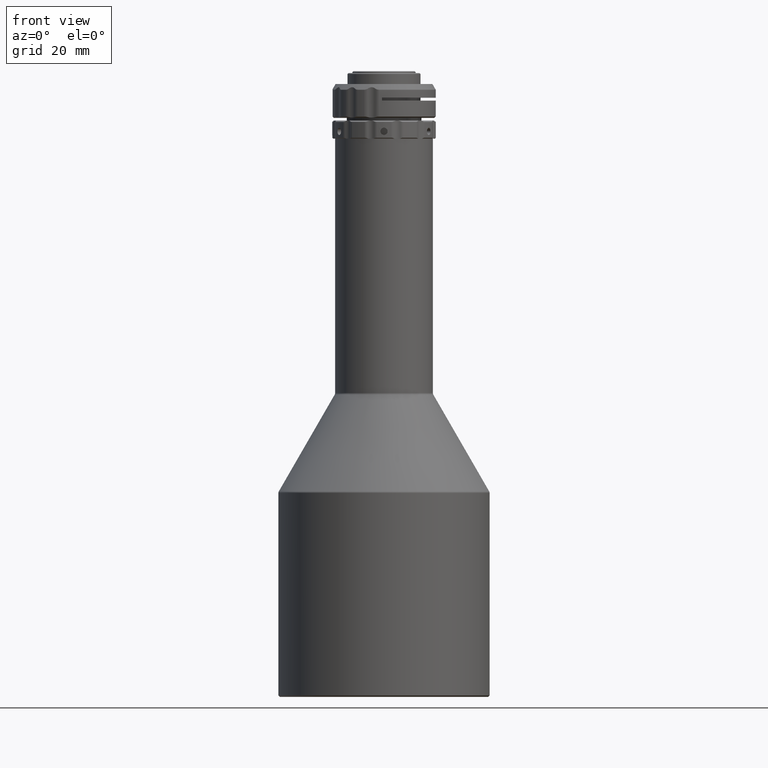
[diagram: clean part render]
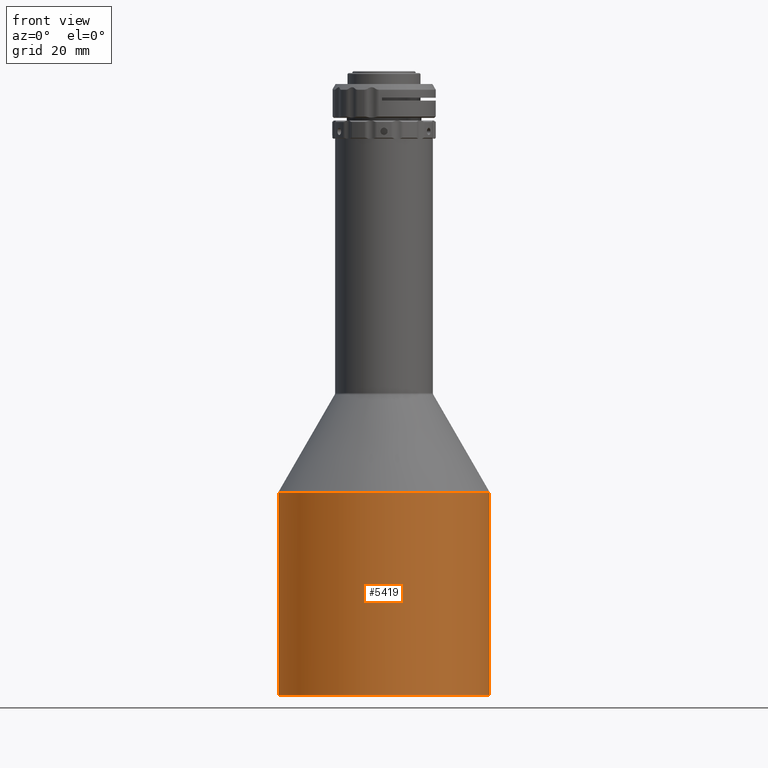
[diagram: same view with one face highlighted and labeled with its STEP entity id]
A machine part, front view. The second image highlights one B-rep face of the part: STEP entity #5419.
In plain terms, the highlighted cylindrical surface (partial cylindrical patch) has radius 36.75 mm, axis along (0, -0, 1).
Its self-contained STEP definition (entity closure, byte-faithful):
#524 = EDGE_LOOP ( 'NONE', ( #5884, #4529, #4062, #4578 ) ) ;
#699 = CIRCLE ( 'NONE', #4353, 36.75000000000005000 ) ;
#1245 = DIRECTION ( 'NONE',  ( 7.861355739480292300E-016, -5.318304654131143500E-016, 1.000000000000000000 ) ) ;
#1383 = FACE_OUTER_BOUND ( 'NONE', #524, .T. ) ;
#1536 = CARTESIAN_POINT ( 'NONE',  ( -9.598827533043995400E-014, 6.146705287498766900E-014, -112.2686914972891300 ) ) ;
#1751 = DIRECTION ( 'NONE',  ( 7.861355739480292300E-016, -5.318304654131143500E-016, 1.000000000000000000 ) ) ;
#1861 = VECTOR ( 'NONE', #1751, 1000.000000000000000 ) ;
#1946 = EDGE_CURVE ( 'NONE', #11489, #7427, #4377, .T. ) ;
#2197 = EDGE_CURVE ( 'NONE', #7427, #10402, #6716, .T. ) ;
#2291 = DIRECTION ( 'NONE',  ( 1.000000000000000000, 1.665334536937721500E-016, -8.024571181389300500E-016 ) ) ;
#2334 = AXIS2_PLACEMENT_3D ( 'NONE', #6674, #7695, #2291 ) ;
#2397 = CARTESIAN_POINT ( 'NONE',  ( 36.75000000000005000, 2.650657471292520600E-015, 9.831308502710818700 ) ) ;
#2401 = DIRECTION ( 'NONE',  ( 1.000000000000000000, 1.665334536937721700E-016, -7.552537582484047700E-016 ) ) ;
#3295 = DIRECTION ( 'NONE',  ( 7.861355739480292300E-016, -5.318304654131143500E-016, 1.000000000000000000 ) ) ;
#3690 = CARTESIAN_POINT ( 'NONE',  ( -36.75000000000008500, 2.237682595997726400E-014, -41.81259333163711000 ) ) ;
#4062 = ORIENTED_EDGE ( 'NONE', *, *, #7653, .T. ) ;
#4224 = VERTEX_POINT ( 'NONE', #7782 ) ;
#4353 = AXIS2_PLACEMENT_3D ( 'NONE', #1536, #7884, #2401 ) ;
#4377 = LINE ( 'NONE', #4411, #1861 ) ;
#4411 = CARTESIAN_POINT ( 'NONE',  ( -36.75000000000005000, -5.088974388333220100E-015, 9.831308502710879100 ) ) ;
#4529 = ORIENTED_EDGE ( 'NONE', *, *, #4755, .T. ) ;
#4578 = ORIENTED_EDGE ( 'NONE', *, *, #2197, .F. ) ;
#4586 = CYLINDRICAL_SURFACE ( 'NONE', #2334, 36.75000000000005000 ) ;
#4642 = VECTOR ( 'NONE', #3295, 1000.000000000000000 ) ;
#4755 = EDGE_CURVE ( 'NONE', #11489, #4224, #699, .T. ) ;
#5419 = ADVANCED_FACE ( 'NONE', ( #1383 ), #4586, .T. ) ;
#5549 = CARTESIAN_POINT ( 'NONE',  ( 36.75000000000000700, 3.011645781960300600E-014, -41.81259333163716700 ) ) ;
#5561 = CARTESIAN_POINT ( 'NONE',  ( -4.060023016084643700E-014, 2.399635339635687200E-014, -41.81259333163713900 ) ) ;
#5884 = ORIENTED_EDGE ( 'NONE', *, *, #1946, .F. ) ;
#6674 = CARTESIAN_POINT ( 'NONE',  ( -1.121751385605398400E-018, -3.469446951953614200E-015, 9.831308502710848900 ) ) ;
#6716 = CIRCLE ( 'NONE', #8520, 36.75000000000004300 ) ;
#7427 = VERTEX_POINT ( 'NONE', #3690 ) ;
#7653 = EDGE_CURVE ( 'NONE', #4224, #10402, #7701, .T. ) ;
#7695 = DIRECTION ( 'NONE',  ( 7.861355739480292300E-016, -5.318304654131143500E-016, 1.000000000000000000 ) ) ;
#7701 = LINE ( 'NONE', #2397, #4642 ) ;
#7782 = CARTESIAN_POINT ( 'NONE',  ( 36.74999999999995000, 6.758715729823380600E-014, -112.2686914972891500 ) ) ;
#7884 = DIRECTION ( 'NONE',  ( 7.861355739480292300E-016, -5.318304654131143500E-016, 1.000000000000000000 ) ) ;
#8520 = AXIS2_PLACEMENT_3D ( 'NONE', #5561, #1245, #9275 ) ;
#9275 = DIRECTION ( 'NONE',  ( 1.000000000000000000, 1.665334536937722200E-016, -7.552537582484049700E-016 ) ) ;
#10402 = VERTEX_POINT ( 'NONE', #5549 ) ;
#11311 = CARTESIAN_POINT ( 'NONE',  ( -36.75000000000008500, 4.111217569929264800E-014, -112.2686914972891000 ) ) ;
#11489 = VERTEX_POINT ( 'NONE', #11311 ) ;